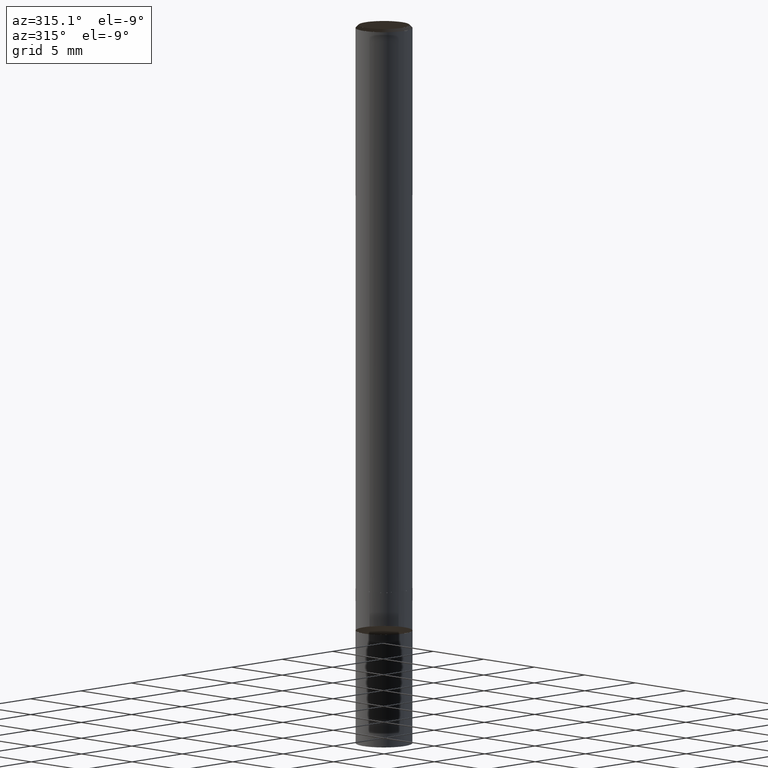
[diagram: clean part render]
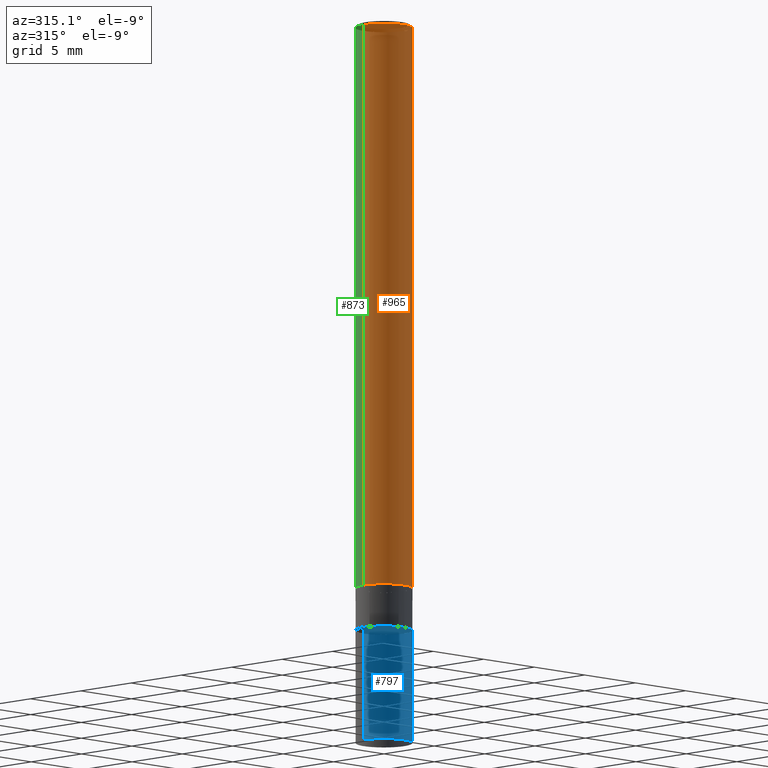
[diagram: same view with three faces highlighted in distinct colors, each labeled with its STEP entity id]
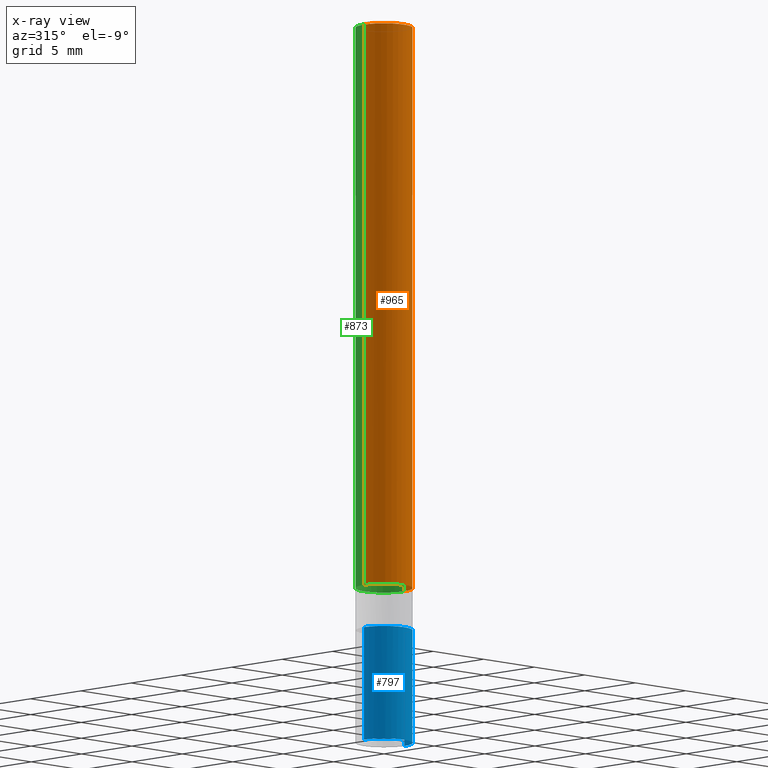
[diagram: x-ray of the same camera — body ghosted, the three highlighted faces saturated]
A machine part, auxiliary view with three faces highlighted in distinct colors.
The next image is the same camera in x-ray (body ghosted, the three faces saturated) — at least one of them is partly hidden behind the body in this view.
Their STEP definitions:

[orange] entity #965 — the highlighted face is a freeform B-spline surface patch.
#678=CARTESIAN_POINT('',(2.0,0.0,0.0));
#682=CARTESIAN_POINT('',(-2.0,0.0,0.0));
#683=CARTESIAN_POINT('',(2.0,0.0,39.8));
#687=CARTESIAN_POINT('',(-2.0,0.0,39.8));
#694=CARTESIAN_POINT('',(-2.0,-2.0,0.0));
#695=CARTESIAN_POINT('',(0.0,-2.0,0.0));
#696=CARTESIAN_POINT('',(2.0,-2.0,0.0));
#697=CARTESIAN_POINT('',(-2.0,-2.0,39.8));
#698=CARTESIAN_POINT('',(0.0,-2.0,39.8));
#699=CARTESIAN_POINT('',(2.0,-2.0,39.8));
#946=(
BOUNDED_SURFACE()
B_SPLINE_SURFACE(1,2,(
(#682,#694,#695,#696,#678),
(#687,#697,#698,#699,#683)
), .UNSPECIFIED.,.F.,.F.,.F.)
B_SPLINE_SURFACE_WITH_KNOTS((2,2),(3,2,3),(
0.0,1.0),(
0.0,0.5,1.0), .UNSPECIFIED.)
GEOMETRIC_REPRESENTATION_ITEM()
RATIONAL_B_SPLINE_SURFACE(((1.0,0.707106781187,1.0,0.707106781187,1.0),
(1.0,0.707106781187,1.0,0.707106781187,1.0)
))
REPRESENTATION_ITEM('')
SURFACE()
);
#947=(
BOUNDED_CURVE()
B_SPLINE_CURVE(2,(#678,#696,#695,#694,#682),.UNSPECIFIED.,.F.,.F.)
B_SPLINE_CURVE_WITH_KNOTS((3,2,3),
(0.0,0.5,1.0),.UNSPECIFIED.)
CURVE()
GEOMETRIC_REPRESENTATION_ITEM()
RATIONAL_B_SPLINE_CURVE((1.0,0.707106781187,1.0,0.707106781187,1.0))
REPRESENTATION_ITEM('')
);
#948=(
BOUNDED_CURVE()
B_SPLINE_CURVE(1,(#682,#687),.UNSPECIFIED.,.F.,.F.)
B_SPLINE_CURVE_WITH_KNOTS((2,2),
(0.0,1.0),.UNSPECIFIED.)
CURVE()
GEOMETRIC_REPRESENTATION_ITEM()
RATIONAL_B_SPLINE_CURVE((1.0,1.0))
REPRESENTATION_ITEM('')
);
#949=(
BOUNDED_CURVE()
B_SPLINE_CURVE(2,(#687,#697,#698,#699,#683),.UNSPECIFIED.,.F.,.F.)
B_SPLINE_CURVE_WITH_KNOTS((3,2,3),
(0.0,0.5,1.0),.UNSPECIFIED.)
CURVE()
GEOMETRIC_REPRESENTATION_ITEM()
RATIONAL_B_SPLINE_CURVE((1.0,0.707106781187,1.0,0.707106781187,1.0))
REPRESENTATION_ITEM('')
);
#950=(
BOUNDED_CURVE()
B_SPLINE_CURVE(1,(#683,#678),.UNSPECIFIED.,.F.,.F.)
B_SPLINE_CURVE_WITH_KNOTS((2,2),
(0.0,1.0),.UNSPECIFIED.)
CURVE()
GEOMETRIC_REPRESENTATION_ITEM()
RATIONAL_B_SPLINE_CURVE((1.0,1.0))
REPRESENTATION_ITEM('')
);
#951=VERTEX_POINT('',#678);
#952=VERTEX_POINT('',#682);
#953=VERTEX_POINT('',#683);
#954=VERTEX_POINT('',#687);
#955=EDGE_CURVE('',#951,#952,#947,.T.);
#956=EDGE_CURVE('',#952,#954,#948,.T.);
#957=EDGE_CURVE('',#954,#953,#949,.T.);
#958=EDGE_CURVE('',#953,#951,#950,.T.);
#959=ORIENTED_EDGE('',*,*,#955,.T.);
#960=ORIENTED_EDGE('',*,*,#956,.T.);
#961=ORIENTED_EDGE('',*,*,#957,.T.);
#962=ORIENTED_EDGE('',*,*,#958,.T.);
#963=EDGE_LOOP('',(#959,#960,#961,#962));
#964=FACE_OUTER_BOUND('',#963,.T.);
#965=ADVANCED_FACE('',(#964),#946,.T.);

[blue] entity #797 — the highlighted face is a freeform B-spline surface patch.
#109=CARTESIAN_POINT('',(0.0,-2.0,-11.0));
#260=CARTESIAN_POINT('',(2.0,0.0,-11.0));
#562=CARTESIAN_POINT('',(-2.0,0.0,-11.0));
#667=CARTESIAN_POINT('',(2.0,0.0,-3.0));
#671=CARTESIAN_POINT('',(-2.0,0.0,-3.0));
#673=CARTESIAN_POINT('',(-2.0,-2.0,-11.0));
#674=CARTESIAN_POINT('',(2.0,-2.0,-11.0));
#675=CARTESIAN_POINT('',(-2.0,-2.0,-3.0));
#676=CARTESIAN_POINT('',(0.0,-2.0,-3.0));
#677=CARTESIAN_POINT('',(2.0,-2.0,-3.0));
#778=(
BOUNDED_SURFACE()
B_SPLINE_SURFACE(1,2,(
(#562,#673,#109,#674,#260),
(#671,#675,#676,#677,#667)
), .UNSPECIFIED.,.F.,.F.,.F.)
B_SPLINE_SURFACE_WITH_KNOTS((2,2),(3,2,3),(
0.0,1.0),(
0.0,0.5,1.0), .UNSPECIFIED.)
GEOMETRIC_REPRESENTATION_ITEM()
RATIONAL_B_SPLINE_SURFACE(((1.0,0.707106781187,1.0,0.707106781187,1.0),
(1.0,0.707106781187,1.0,0.707106781187,1.0)
))
REPRESENTATION_ITEM('')
SURFACE()
);
#779=(
BOUNDED_CURVE()
B_SPLINE_CURVE(2,(#260,#674,#109,#673,#562),.UNSPECIFIED.,.F.,.F.)
B_SPLINE_CURVE_WITH_KNOTS((3,2,3),
(0.0,0.5,1.0),.UNSPECIFIED.)
CURVE()
GEOMETRIC_REPRESENTATION_ITEM()
RATIONAL_B_SPLINE_CURVE((1.0,0.707106781187,1.0,0.707106781187,1.0))
REPRESENTATION_ITEM('')
);
#780=(
BOUNDED_CURVE()
B_SPLINE_CURVE(1,(#562,#671),.UNSPECIFIED.,.F.,.F.)
B_SPLINE_CURVE_WITH_KNOTS((2,2),
(0.0,1.0),.UNSPECIFIED.)
CURVE()
GEOMETRIC_REPRESENTATION_ITEM()
RATIONAL_B_SPLINE_CURVE((1.0,1.0))
REPRESENTATION_ITEM('')
);
#781=(
BOUNDED_CURVE()
B_SPLINE_CURVE(2,(#671,#675,#676,#677,#667),.UNSPECIFIED.,.F.,.F.)
B_SPLINE_CURVE_WITH_KNOTS((3,2,3),
(0.0,0.5,1.0),.UNSPECIFIED.)
CURVE()
GEOMETRIC_REPRESENTATION_ITEM()
RATIONAL_B_SPLINE_CURVE((1.0,0.707106781187,1.0,0.707106781187,1.0))
REPRESENTATION_ITEM('')
);
#782=(
BOUNDED_CURVE()
B_SPLINE_CURVE(1,(#667,#260),.UNSPECIFIED.,.F.,.F.)
B_SPLINE_CURVE_WITH_KNOTS((2,2),
(0.0,1.0),.UNSPECIFIED.)
CURVE()
GEOMETRIC_REPRESENTATION_ITEM()
RATIONAL_B_SPLINE_CURVE((1.0,1.0))
REPRESENTATION_ITEM('')
);
#783=VERTEX_POINT('',#260);
#784=VERTEX_POINT('',#562);
#785=VERTEX_POINT('',#667);
#786=VERTEX_POINT('',#671);
#787=EDGE_CURVE('',#783,#784,#779,.T.);
#788=EDGE_CURVE('',#784,#786,#780,.T.);
#789=EDGE_CURVE('',#786,#785,#781,.T.);
#790=EDGE_CURVE('',#785,#783,#782,.T.);
#791=ORIENTED_EDGE('',*,*,#787,.T.);
#792=ORIENTED_EDGE('',*,*,#788,.T.);
#793=ORIENTED_EDGE('',*,*,#789,.T.);
#794=ORIENTED_EDGE('',*,*,#790,.T.);
#795=EDGE_LOOP('',(#791,#792,#793,#794));
#796=FACE_OUTER_BOUND('',#795,.T.);
#797=ADVANCED_FACE('',(#796),#778,.T.);

[green] entity #873 — the highlighted face is a freeform B-spline surface patch.
#678=CARTESIAN_POINT('',(2.0,0.0,0.0));
#679=CARTESIAN_POINT('',(2.0,2.0,0.0));
#680=CARTESIAN_POINT('',(0.0,2.0,0.0));
#681=CARTESIAN_POINT('',(-2.0,2.0,0.0));
#682=CARTESIAN_POINT('',(-2.0,0.0,0.0));
#683=CARTESIAN_POINT('',(2.0,0.0,39.8));
#684=CARTESIAN_POINT('',(2.0,2.0,39.8));
#685=CARTESIAN_POINT('',(0.0,2.0,39.8));
#686=CARTESIAN_POINT('',(-2.0,2.0,39.8));
#687=CARTESIAN_POINT('',(-2.0,0.0,39.8));
#854=(
BOUNDED_SURFACE()
B_SPLINE_SURFACE(1,2,(
(#678,#679,#680,#681,#682),
(#683,#684,#685,#686,#687)
), .UNSPECIFIED.,.F.,.F.,.F.)
B_SPLINE_SURFACE_WITH_KNOTS((2,2),(3,2,3),(
0.0,1.0),(
0.0,0.5,1.0), .UNSPECIFIED.)
GEOMETRIC_REPRESENTATION_ITEM()
RATIONAL_B_SPLINE_SURFACE(((1.0,0.707106781187,1.0,0.707106781187,1.0),
(1.0,0.707106781187,1.0,0.707106781187,1.0)
))
REPRESENTATION_ITEM('')
SURFACE()
);
#855=(
BOUNDED_CURVE()
B_SPLINE_CURVE(2,(#682,#681,#680,#679,#678),.UNSPECIFIED.,.F.,.F.)
B_SPLINE_CURVE_WITH_KNOTS((3,2,3),
(0.0,0.5,1.0),.UNSPECIFIED.)
CURVE()
GEOMETRIC_REPRESENTATION_ITEM()
RATIONAL_B_SPLINE_CURVE((1.0,0.707106781187,1.0,0.707106781187,1.0))
REPRESENTATION_ITEM('')
);
#856=(
BOUNDED_CURVE()
B_SPLINE_CURVE(1,(#678,#683),.UNSPECIFIED.,.F.,.F.)
B_SPLINE_CURVE_WITH_KNOTS((2,2),
(0.0,1.0),.UNSPECIFIED.)
CURVE()
GEOMETRIC_REPRESENTATION_ITEM()
RATIONAL_B_SPLINE_CURVE((1.0,1.0))
REPRESENTATION_ITEM('')
);
#857=(
BOUNDED_CURVE()
B_SPLINE_CURVE(2,(#683,#684,#685,#686,#687),.UNSPECIFIED.,.F.,.F.)
B_SPLINE_CURVE_WITH_KNOTS((3,2,3),
(0.0,0.5,1.0),.UNSPECIFIED.)
CURVE()
GEOMETRIC_REPRESENTATION_ITEM()
RATIONAL_B_SPLINE_CURVE((1.0,0.707106781187,1.0,0.707106781187,1.0))
REPRESENTATION_ITEM('')
);
#858=(
BOUNDED_CURVE()
B_SPLINE_CURVE(1,(#687,#682),.UNSPECIFIED.,.F.,.F.)
B_SPLINE_CURVE_WITH_KNOTS((2,2),
(0.0,1.0),.UNSPECIFIED.)
CURVE()
GEOMETRIC_REPRESENTATION_ITEM()
RATIONAL_B_SPLINE_CURVE((1.0,1.0))
REPRESENTATION_ITEM('')
);
#859=VERTEX_POINT('',#678);
#860=VERTEX_POINT('',#682);
#861=VERTEX_POINT('',#683);
#862=VERTEX_POINT('',#687);
#863=EDGE_CURVE('',#860,#859,#855,.T.);
#864=EDGE_CURVE('',#859,#861,#856,.T.);
#865=EDGE_CURVE('',#861,#862,#857,.T.);
#866=EDGE_CURVE('',#862,#860,#858,.T.);
#867=ORIENTED_EDGE('',*,*,#863,.T.);
#868=ORIENTED_EDGE('',*,*,#864,.T.);
#869=ORIENTED_EDGE('',*,*,#865,.T.);
#870=ORIENTED_EDGE('',*,*,#866,.T.);
#871=EDGE_LOOP('',(#867,#868,#869,#870));
#872=FACE_OUTER_BOUND('',#871,.T.);
#873=ADVANCED_FACE('',(#872),#854,.T.);